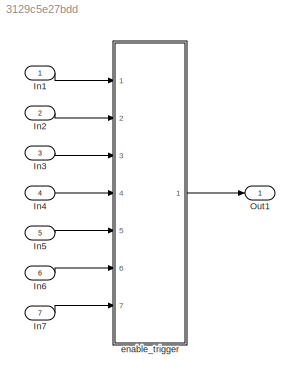
MODEL slx_3129c5e27bdd
KIND model
CONFIG AbsTol = auto
CONFIG EnableMultiTasking = off
CONFIG FixedStep = auto
CONFIG MaxStep = auto
CONFIG MinStep = auto
CONFIG RelTol = 1e-3
CONFIG SampleTimeConstraint = Unconstrained
CONFIG Solver = FixedStepDiscrete
CONFIG SolverName = FixedStepDiscrete
CONFIG StartTime = 0.0
CONFIG StopTime = 10.0
BLOCK [Inport] In1
  IconDisplay = Port number
BLOCK [Inport] In2
  IconDisplay = Port number
  Port = 2
BLOCK [Inport] In3
  BusOutputAsStruct = on
  IconDisplay = Port number
  OutDataTypeStr = Bus: kfBus
  Port = 3
BLOCK [Inport] In4
  BusOutputAsStruct = on
  IconDisplay = Port number
  OutDataTypeStr = Bus: kfBus
  Port = 4
BLOCK [Inport] In5
  BusOutputAsStruct = on
  IconDisplay = Port number
  OutDataTypeStr = Bus: kfBus
  Port = 5
BLOCK [Inport] In6
  IconDisplay = Port number
  Port = 6
BLOCK [Inport] In7
  IconDisplay = Port number
  Port = 7
BLOCK [Outport] Out1
  IconDisplay = Port number
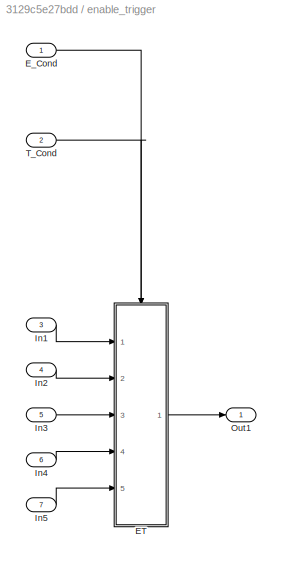
BLOCK [SubSystem] enable_trigger
  AncestorBlock = Block_TestLib/enable_trigger
  Ports = [7, 1]
  RequestExecContextInheritance = off
  Variant = off
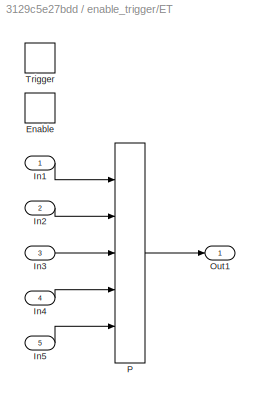
BLOCK [SubSystem] enable_trigger/ET
  Ports = [5, 1, 1, 1]
  RequestExecContextInheritance = off
  TreatAsAtomicUnit = on
  Variant = off
BLOCK [EnablePort] enable_trigger/ET/Enable
  Ports = []
BLOCK [Inport] enable_trigger/ET/In1
  BusOutputAsStruct = on
  IconDisplay = Port number
  OutDataTypeStr = Bus: kfBus
  OutMax = 2
  OutMin = 0
  PortDimensions = 1
BLOCK [Inport] enable_trigger/ET/In2
  BusOutputAsStruct = on
  IconDisplay = Port number
  OutDataTypeStr = Bus: kfBus
  OutMax = 5
  OutMin = 0
  Port = 2
BLOCK [Inport] enable_trigger/ET/In3
  BusOutputAsStruct = on
  IconDisplay = Port number
  OutDataTypeStr = Bus: kfBus
  OutMax = 3
  OutMin = 0
  Port = 3
BLOCK [Inport] enable_trigger/ET/In4
  IconDisplay = Port number
  OutMax = 2
  OutMin = 0
  Port = 4
BLOCK [Inport] enable_trigger/ET/In5
  IconDisplay = Port number
  Port = 5
  PortDimensions = [2 5 3 2]
BLOCK [Outport] enable_trigger/ET/Out1
  IconDisplay = Port number
BLOCK [Interpolation_n-D] enable_trigger/ET/P
  ExtrapMethod = Clip
  InitFcn = elems(1) = Simulink.BusElement;\nelems(1).Name = 'Index';\nelems(1).DataType = 'int8';\nelems(2) = Simulink.BusElement;\nelems(2).Name = 'Fraction';\nelems(2).DataType = 'double';\nkfBus = Simulink.Bus;\nkfBus.Elements = elems;\nclear elems;\nassignin('base', 'kfBus', kfBus);
  InputPortMap = u0,u1,u2,u3,p2
  IntermediateResultsDataTypeStr = double
  InternalRulePriority = Speed
  InterpMethod = Flat
  NumSelectionDims = 1
  NumberOfTableDimensions = 4
  OutDataTypeStr = int16
  Ports = [5, 1]
  RequireIndexFractionAsBus = on
  RndMeth = Ceiling
  TableSource = Input port
BLOCK [TriggerPort] enable_trigger/ET/Trigger
  Ports = []
  StatesWhenEnabling = held
  VariantControl = Variant
BLOCK [Inport] enable_trigger/E_Cond
  IconDisplay = Port number
  OutDataTypeStr = boolean
BLOCK [Inport] enable_trigger/In1
  BusOutputAsStruct = on
  IconDisplay = Port number
  OutDataTypeStr = Bus: kfBus
  Port = 3
BLOCK [Inport] enable_trigger/In2
  BusOutputAsStruct = on
  IconDisplay = Port number
  OutDataTypeStr = Bus: kfBus
  Port = 4
BLOCK [Inport] enable_trigger/In3
  BusOutputAsStruct = on
  IconDisplay = Port number
  OutDataTypeStr = Bus: kfBus
  Port = 5
BLOCK [Inport] enable_trigger/In4
  IconDisplay = Port number
  Port = 6
BLOCK [Inport] enable_trigger/In5
  IconDisplay = Port number
  Port = 7
BLOCK [Outport] enable_trigger/Out1
  IconDisplay = Port number
BLOCK [Inport] enable_trigger/T_Cond
  IconDisplay = Port number
  OutDataTypeStr = boolean
  Port = 2
LINE In1:1 -> enable_trigger:1
LINE In2:1 -> enable_trigger:2
LINE In3:1 -> enable_trigger:3
LINE In4:1 -> enable_trigger:4
LINE In5:1 -> enable_trigger:5
LINE In6:1 -> enable_trigger:6
LINE In7:1 -> enable_trigger:7
LINE enable_trigger:1 -> Out1:1
